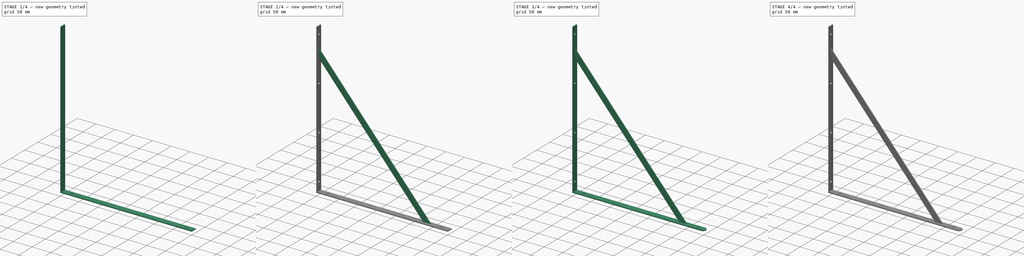
[diagram: build sequence overview — one tinted view per stage of 4, left to right]
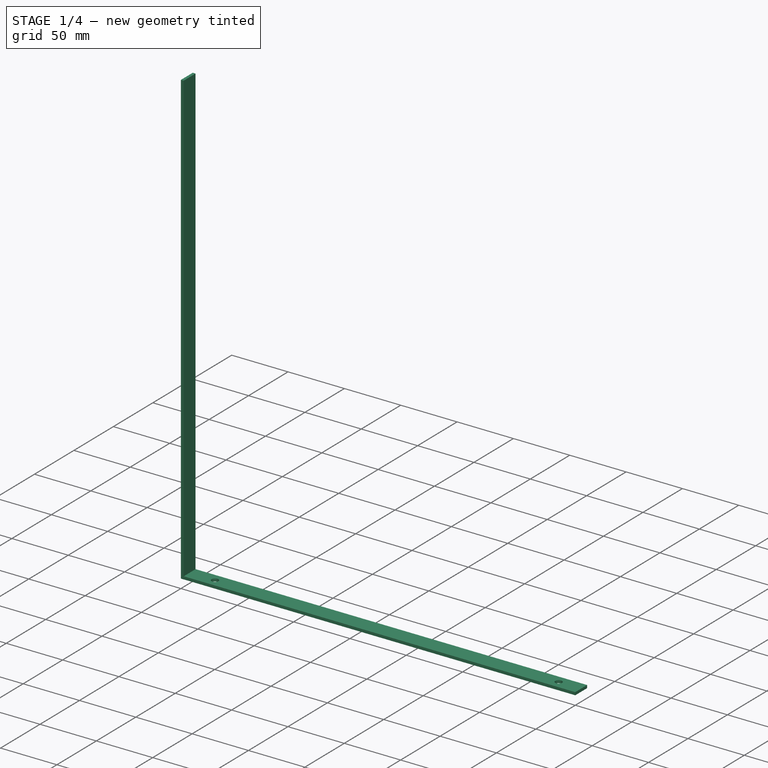
[diagram: stage 1 of 4 — iso view after this stage's code; geometry added in this stage tinted green]
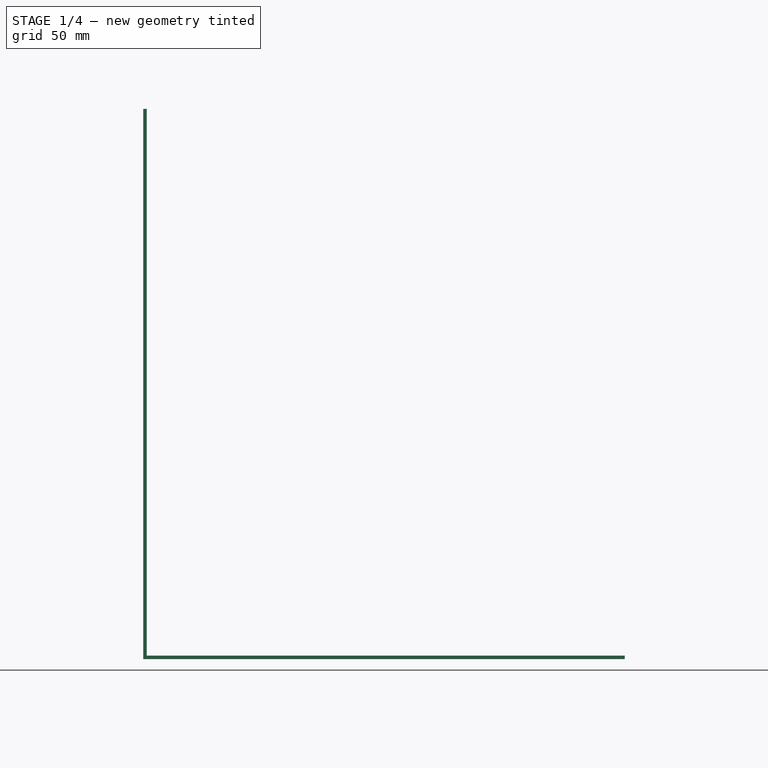
[diagram: stage 1 of 4 — front view after this stage's code; geometry added in this stage tinted green]
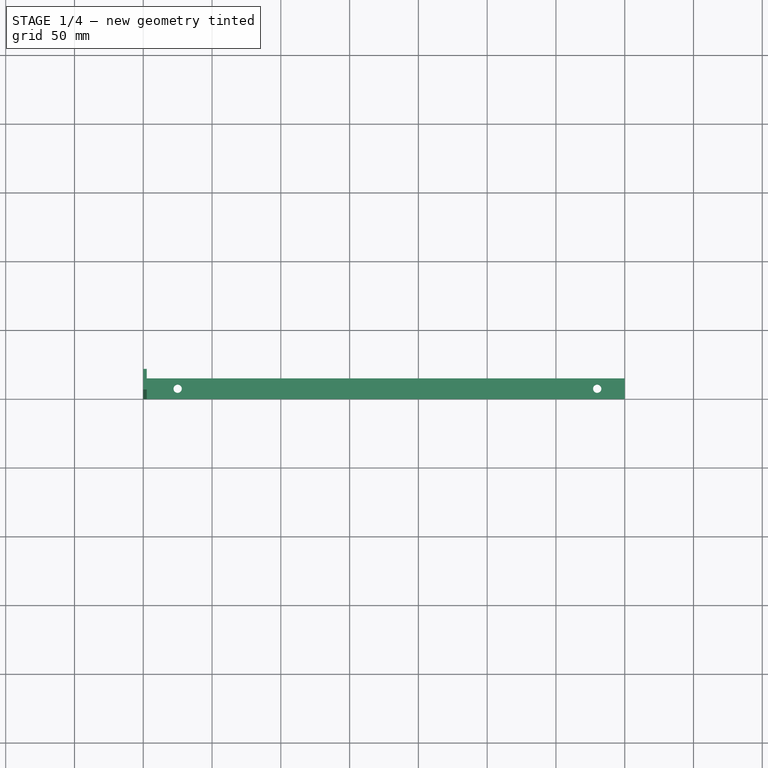
[diagram: stage 1 of 4 — top view after this stage's code; geometry added in this stage tinted green]
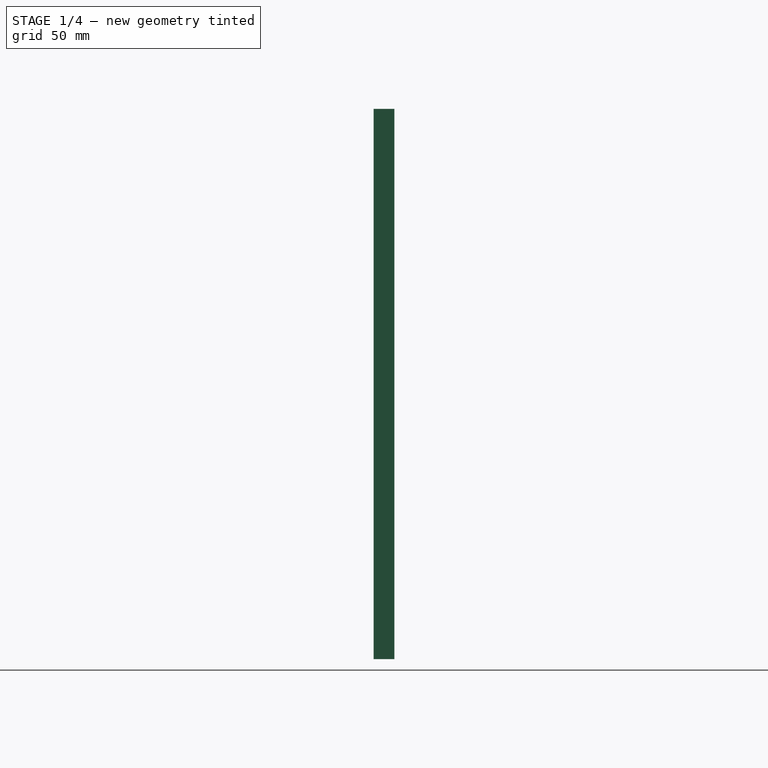
[diagram: stage 1 of 4 — right view after this stage's code; geometry added in this stage tinted green]
FCSTD DOCUMENT  (FreeCAD 0.19R)
Label: CANTONEIRA
License: All rights reserved
LicenseURL: http://en.wikipedia.org/wiki/All_rights_reserved
objects: Sketcher::SketchObject×4, Part::Extrusion×4, Part::Fillet×4, Part::Cut×2, Part::MultiFuse×1
note: 15 computed .brp shape members not serialized (recipe doc carries the construction recipe); baked Part::Feature solids carry a one-line shape summary decoded from their .brp

FEATURE [Sketcher::SketchObject] Sketch
  Placement = pos=(0,0,0) rot=(-1,0,0;4.71239rad)
  sketch-geometry (6):
    g0: LineSegment StartX=0 StartY=0 StartZ=0 EndX=350 EndY=0 EndZ=0
    g1: LineSegment StartX=350 StartY=0 StartZ=0 EndX=350 EndY=2.5 EndZ=0
    g2: LineSegment StartX=0 StartY=400 StartZ=0 EndX=2.5 EndY=400 EndZ=0
    g3: LineSegment StartX=2.5 StartY=400 StartZ=0 EndX=2.5 EndY=2.5 EndZ=0
    g4: LineSegment StartX=0 StartY=400 StartZ=0 EndX=0 EndY=0 EndZ=0
    g5: LineSegment StartX=2.5 StartY=2.5 StartZ=0 EndX=350 EndY=2.5 EndZ=0
  constraints (17):
    c: Coincident(g0,g1)
    c: Coincident(g2,g3)
    c: Horizontal(g0)
    c: Horizontal(g2)
    c: Vertical(g1)
    c: Vertical(g3)
    c: Coincident(g0,g-1)
    c: Horizontal(g5)
    c: Vertical(g4)
    c: Coincident(g2,g4)
    c: Coincident(g5,g1)
    c: Equal(g2,g1)
    c: DistanceY(g1,g1) = 2.5
    c: DistanceX(g0,g0) = 350
    c: DistanceY(g4,g4) = 400
    c: Coincident(g3,g5)
    c: Coincident(g4,g0)
FEATURE [Part::Extrusion] Extrude
  Base = -> Sketch
  Dir = (0,1,0)
  DirMode = 0
  FaceMakerClass = Part::FaceMakerBullseye
  LengthFwd = 15
  LengthRev = 0
  Solid = true
  Symmetric = false
FEATURE [Sketcher::SketchObject] Sketch001
  ExternalGeometry = -> [Extrude]
  MapMode = 5
  Placement = pos=(0,0,2.5) rot=(0,0,1;0rad)
  Support = -> [Extrude]
  sketch-geometry (5):
    g0: LineSegment [constr] StartX=350 StartY=7.5 StartZ=0 EndX=330 EndY=7.5 EndZ=0
    g1: LineSegment [constr] StartX=330 StartY=7.5 StartZ=0 EndX=25 EndY=7.5 EndZ=0
    g2: LineSegment [constr] StartX=25 StartY=7.5 StartZ=0 EndX=0 EndY=7.5 EndZ=0
    g3: Circle CenterX=25 CenterY=7.5 CenterZ=0 NormalX=0 NormalY=0 NormalZ=1 AngleXU=0 Radius=3
    g4: Circle CenterX=330 CenterY=7.5 CenterZ=0 NormalX=0 NormalY=0 NormalZ=1 AngleXU=0 Radius=3
  constraints (9):
    c: PointOnObject(g0,g-4)
    c: Horizontal(g0)
    c: DistanceX(g2,g2) = 25
    c: DistanceX(g0,g0) = 20
    c: Coincident(g3,g1)
    c: Coincident(g4,g0)
    c: Equal(g4,g3)
    c: Diameter(g3) = 6
    c: Coincident(g4,g1)
FEATURE [Sketcher::SketchObject] Sketch002
  ExternalGeometry = -> [Extrude]
  MapMode = 5
  Placement = pos=(0,0,0) rot=(0.57735,-0.57735,-0.57735;2.0944rad)
  Support = -> [Extrude]
  sketch-geometry (9):
    g0: LineSegment [constr] StartX=-7.5 StartY=0 StartZ=0 EndX=-7.5 EndY=25 EndZ=0
    g1: LineSegment [constr] StartX=-7.5 StartY=25 StartZ=0 EndX=-7.5 EndY=143.333 EndZ=0
    g2: LineSegment [constr] StartX=-7.5 StartY=143.333 StartZ=0 EndX=-7.5 EndY=261.667 EndZ=0
    g3: LineSegment [constr] StartX=-7.5 StartY=261.667 StartZ=0 EndX=-7.5 EndY=380 EndZ=0
    g4: LineSegment [constr] StartX=-7.5 StartY=380 StartZ=0 EndX=-7.5 EndY=400 EndZ=0
    g5: Circle CenterX=-7.5 CenterY=25 CenterZ=0 NormalX=0 NormalY=0 NormalZ=1 AngleXU=0 Radius=3
    g6: Circle CenterX=-7.5 CenterY=143.333 CenterZ=0 NormalX=0 NormalY=0 NormalZ=1 AngleXU=0 Radius=3
    g7: Circle CenterX=-7.5 CenterY=261.667 CenterZ=0 NormalX=0 NormalY=0 NormalZ=1 AngleXU=0 Radius=3
    g8: Circle CenterX=-7.5 CenterY=380 CenterZ=0 NormalX=0 NormalY=0 NormalZ=1 AngleXU=0 Radius=3
  constraints (23):
    c: PointOnObject(g0,g-3)
    c: Vertical(g0)
    c: Coincident(g0,g1)
    c: Vertical(g1)
    c: Coincident(g1,g2)
    c: Vertical(g2)
    c: Coincident(g2,g3)
    c: Vertical(g3)
    c: Coincident(g3,g4)
    c: Vertical(g4)
    c: Symmetric(g-4,g-4,g4)
    c: DistanceY(g4,g4) = 20
    c: DistanceY(g0,g0) = 25
    c: Equal(g1,g2)
    c: Equal(g2,g3)
    c: Coincident(g5,g0)
    c: Coincident(g6,g1)
    c: Coincident(g7,g2)
    c: Coincident(g8,g3)
    c: Diameter(g8) = 6
    c: Equal(g8,g7)
    c: Equal(g7,g6)
    c: Equal(g6,g5)
FEATURE [Sketcher::SketchObject] Sketch003
  ExternalGeometry = -> [Extrude]
  Placement = pos=(0,0,0) rot=(-1,0,0;4.71239rad)
  sketch-geometry (5):
    g0: LineSegment StartX=300 StartY=2.5 StartZ=0 EndX=280.131 EndY=2.5 EndZ=0
    g1: LineSegment StartX=280.131 StartY=2.5 StartZ=0 EndX=2.5 EndY=322.126 EndZ=0
    g2: LineSegment StartX=2.5 StartY=322.126 StartZ=0 EndX=2.5 EndY=345 EndZ=0
    g3: LineSegment StartX=2.5 StartY=345 StartZ=0 EndX=300 EndY=2.5 EndZ=0
    g4: LineSegment [constr] StartX=151.25 StartY=173.75 StartZ=0 EndX=139.926 EndY=163.913 EndZ=0
  constraints (15):
    c: Horizontal(g0)
    c: Coincident(g0,g1)
    c: Coincident(g1,g2)
    c: Vertical(g2)
    c: Coincident(g2,g3)
    c: Coincident(g3,g0)
    c: PointOnObject(g0,g-4)
    c: DistanceX(g0,g-4) = 50
    c: PointOnObject(g2,g-3)
    c: DistanceY(g2,g-3) = 55
    c: Parallel(g1,g3)
    c: PointOnObject(g4,g1)
    c: Symmetric(g3,g3,g4)
    c: Perpendicular(g3,g4)
    c: Distance(g4) = 15
FEATURE [Part::Extrusion] Extrude001
  Base = -> Sketch001
  Dir = (0,0,-1)
  DirMode = 0
  FaceMakerClass = Part::FaceMakerBullseye
  LengthFwd = 10
  LengthRev = 0
  Solid = true
  Symmetric = false
FEATURE [Part::Cut] Cut
  Base = -> Extrude
  Refine = true
  Tool = -> Extrude001
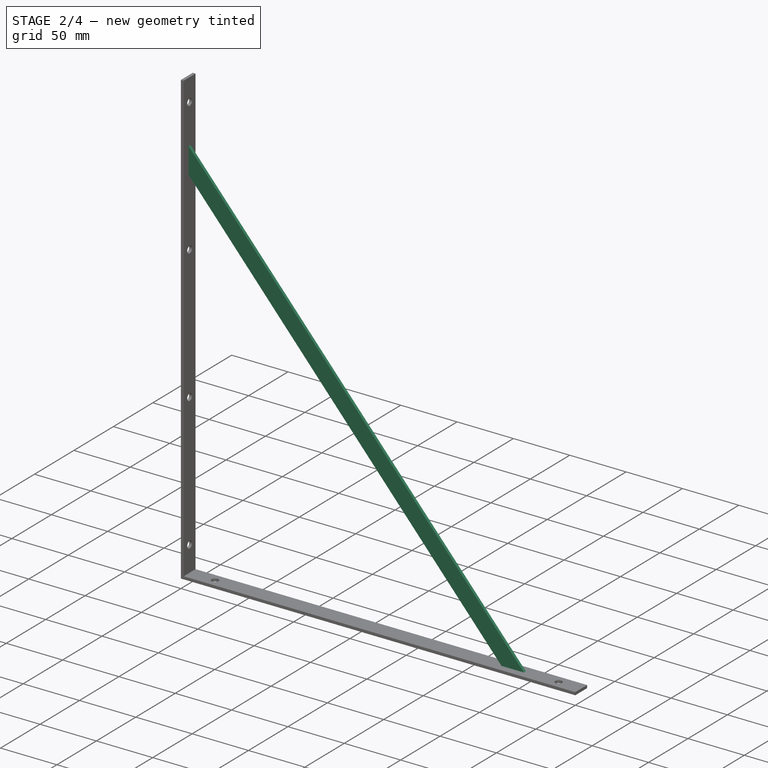
[diagram: stage 2 of 4 — iso view after this stage's code; geometry added in this stage tinted green]
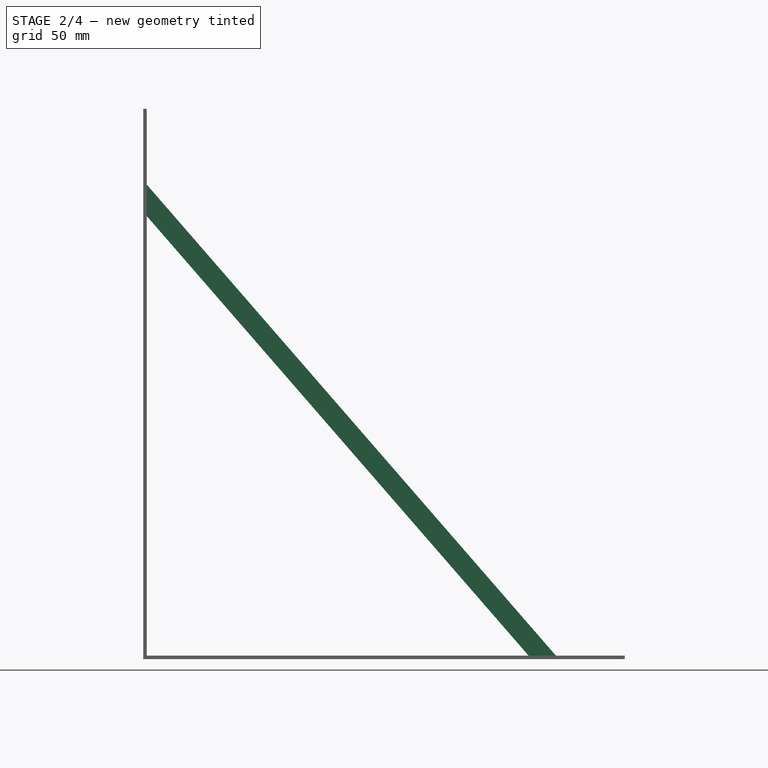
[diagram: stage 2 of 4 — front view after this stage's code; geometry added in this stage tinted green]
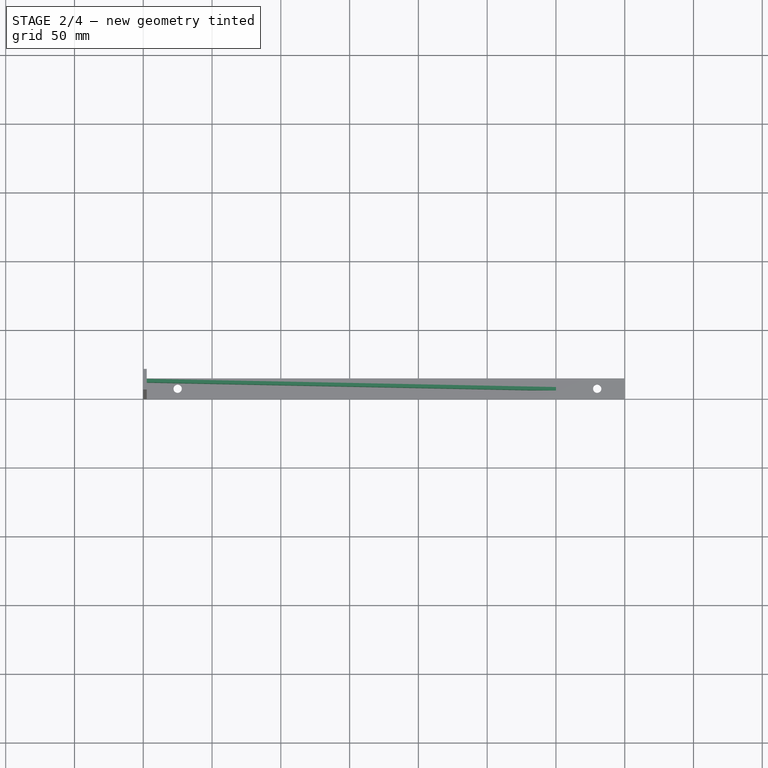
[diagram: stage 2 of 4 — top view after this stage's code; geometry added in this stage tinted green]
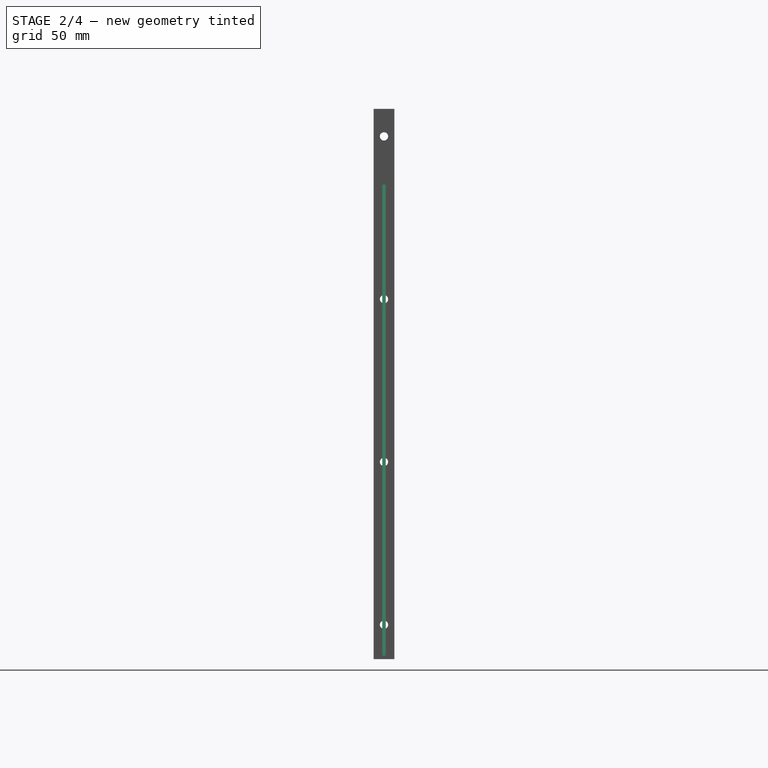
[diagram: stage 2 of 4 — right view after this stage's code; geometry added in this stage tinted green]
FEATURE [Part::Extrusion] Extrude002
  Base = -> Sketch002
  Dir = (1,0,0)
  DirMode = 0
  FaceMakerClass = Part::FaceMakerBullseye
  LengthFwd = 10
  LengthRev = 0
  Solid = true
  Symmetric = false
FEATURE [Part::Extrusion] Extrude003
  Base = -> Sketch003
  Dir = (0,1,0)
  DirMode = 0
  FaceMakerClass = Part::FaceMakerBullseye
  LengthFwd = 2.5
  LengthRev = 0
  Placement = pos=(0,6.25,0) rot=(0,0,1;0rad)
  Solid = true
  Symmetric = false
FEATURE [Part::Cut] Cut001
  Base = -> Cut
  Refine = true
  Tool = -> Extrude002
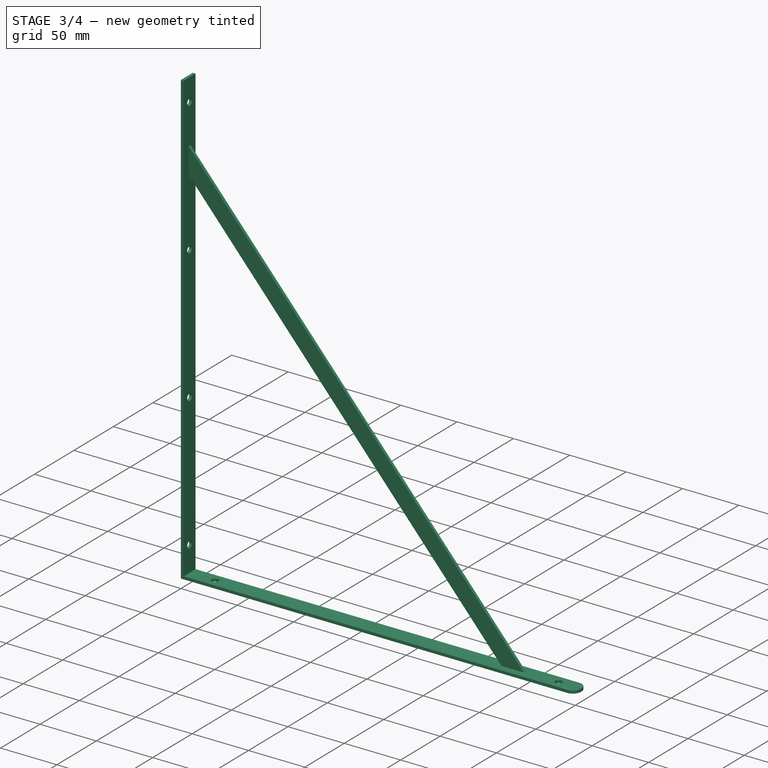
[diagram: stage 3 of 4 — iso view after this stage's code; geometry added in this stage tinted green]
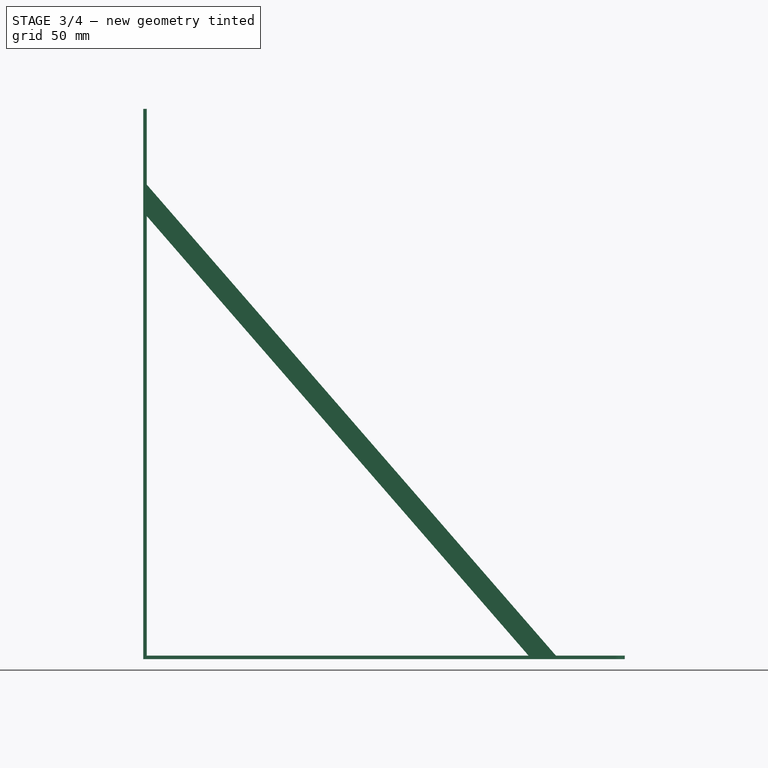
[diagram: stage 3 of 4 — front view after this stage's code; geometry added in this stage tinted green]
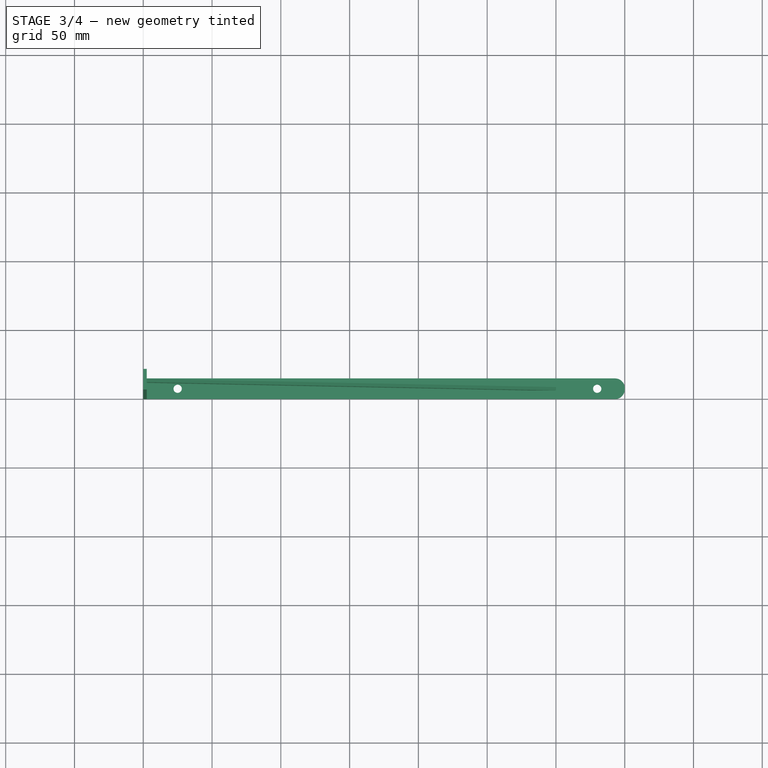
[diagram: stage 3 of 4 — top view after this stage's code; geometry added in this stage tinted green]
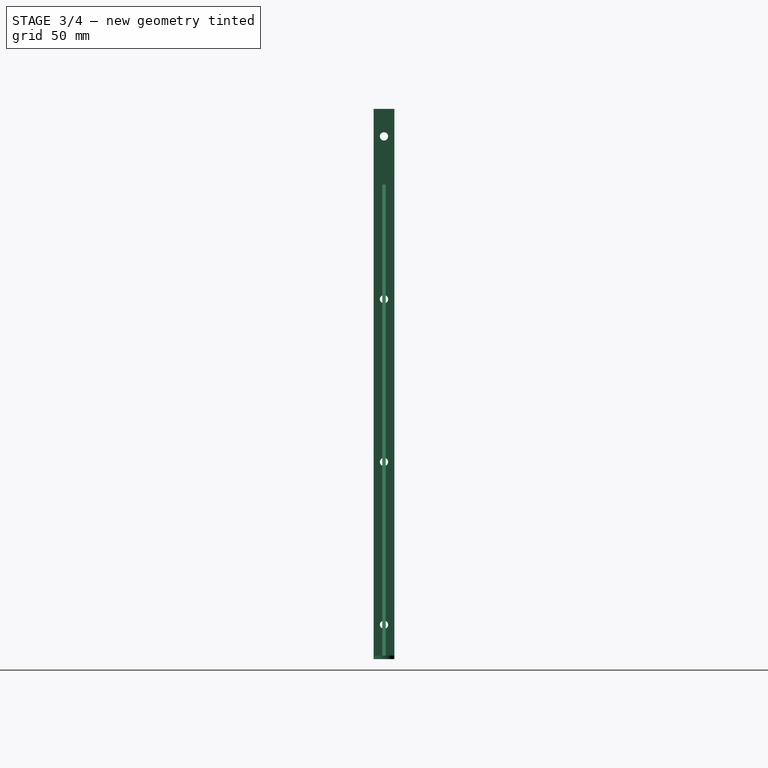
[diagram: stage 3 of 4 — right view after this stage's code; geometry added in this stage tinted green]
FEATURE [Part::MultiFuse] Fusion
  Refine = true
  Shapes = -> [Extrude003,Cut001]
FEATURE [Part::Fillet] Fillet
  Base = -> Fusion
  Edges = 2 edges r=7: [Edge13,Edge17]
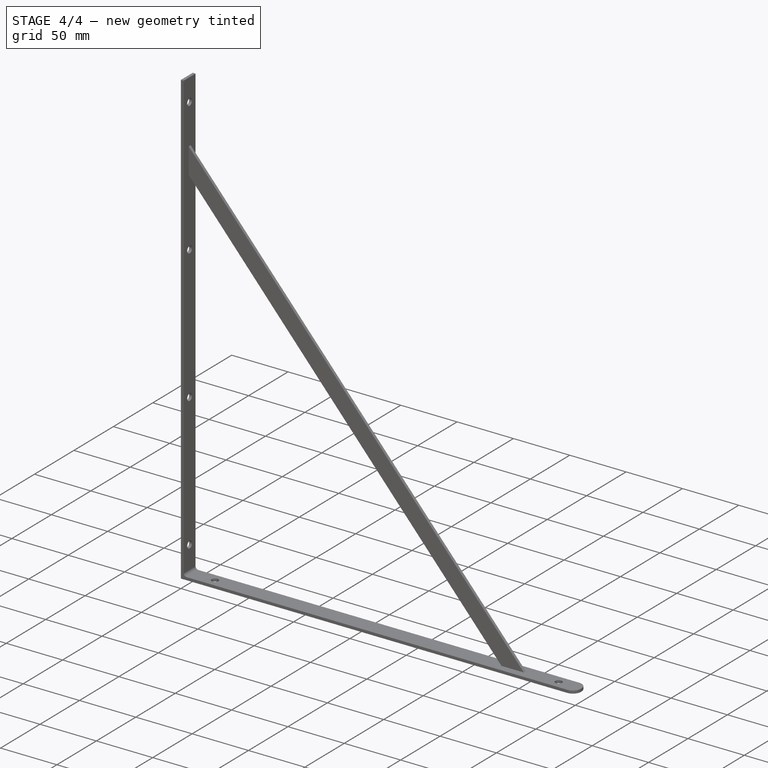
[diagram: stage 4 of 4 — iso view after this stage's code; geometry added in this stage tinted green]
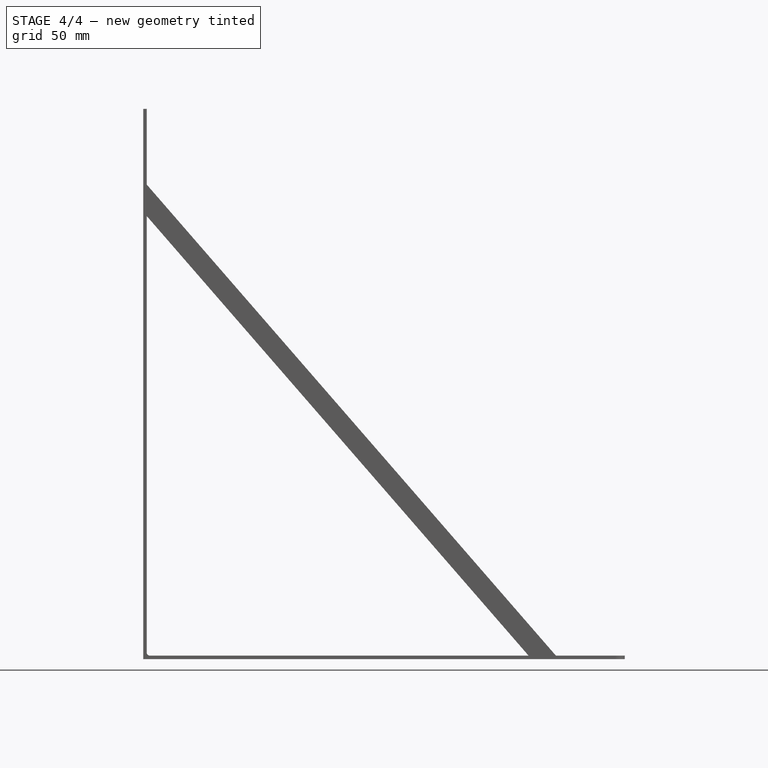
[diagram: stage 4 of 4 — front view after this stage's code; geometry added in this stage tinted green]
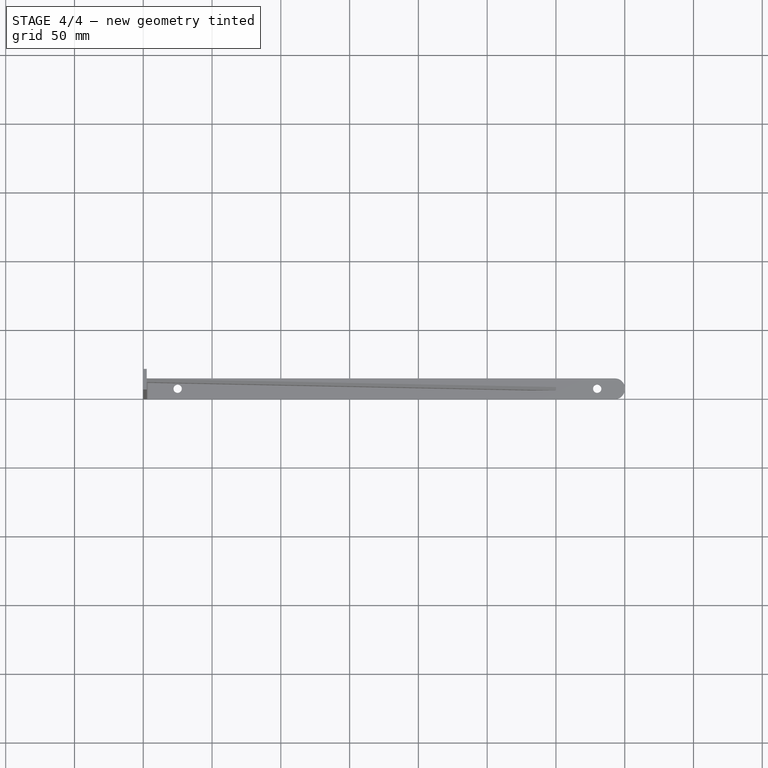
[diagram: stage 4 of 4 — top view after this stage's code; geometry added in this stage tinted green]
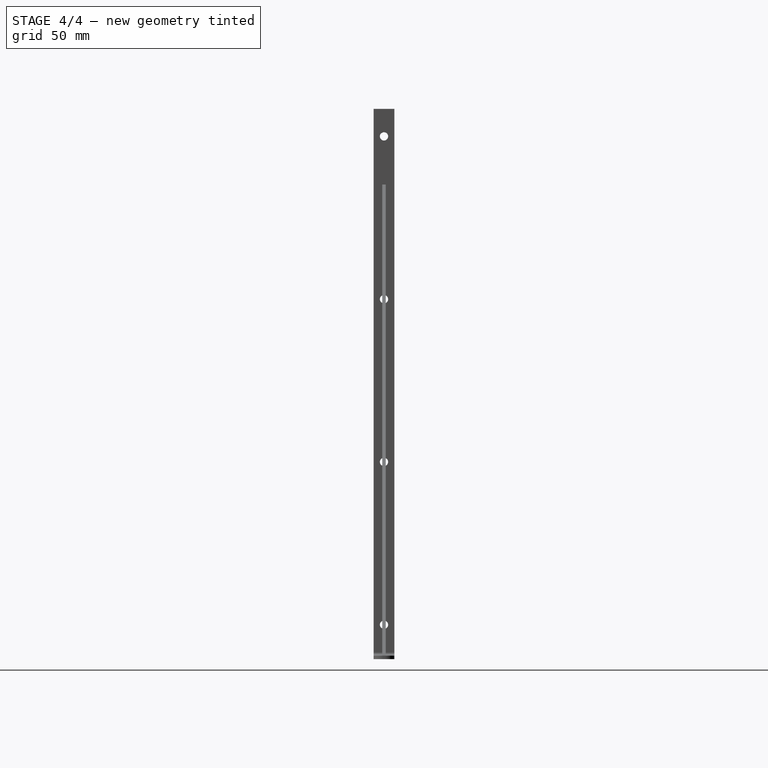
[diagram: stage 4 of 4 — right view after this stage's code; geometry added in this stage tinted green]
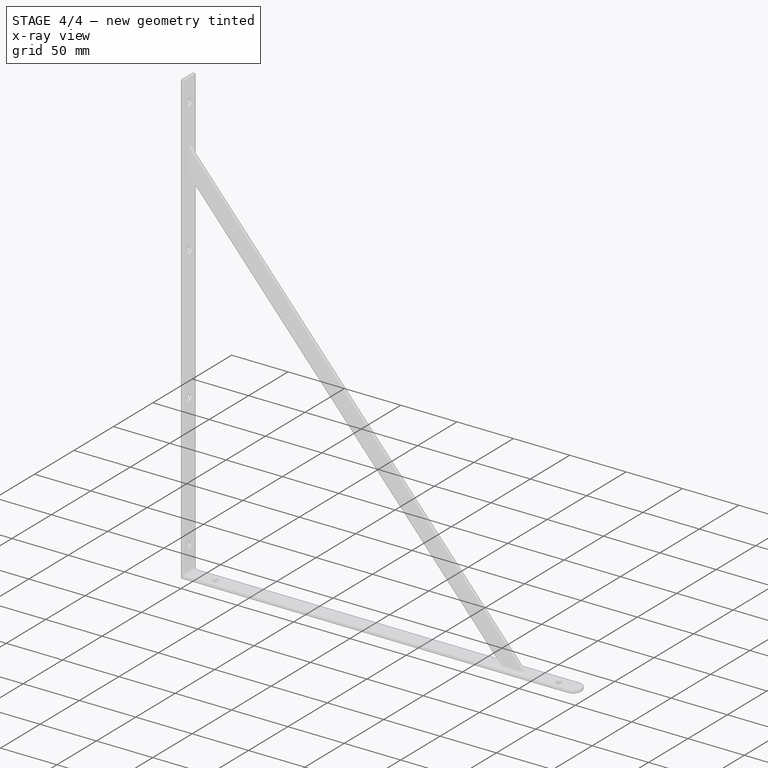
[diagram: stage 4 of 4 — x-ray composite at the iso view; earlier geometry ghosted, this stage's added geometry solid]
FEATURE [Part::Fillet] Fillet001
  Base = -> Fillet
  Edges = 2 edges r=7: [Edge3,Edge32]
FEATURE [Part::Fillet] Fillet002
  Base = -> Fillet
  Edges = 1 edges r=2.5: [Edge22]
FEATURE [Part::Fillet] Fillet003
  Base = -> Fillet002
  Edges = 1 edges r=5: [Edge34]
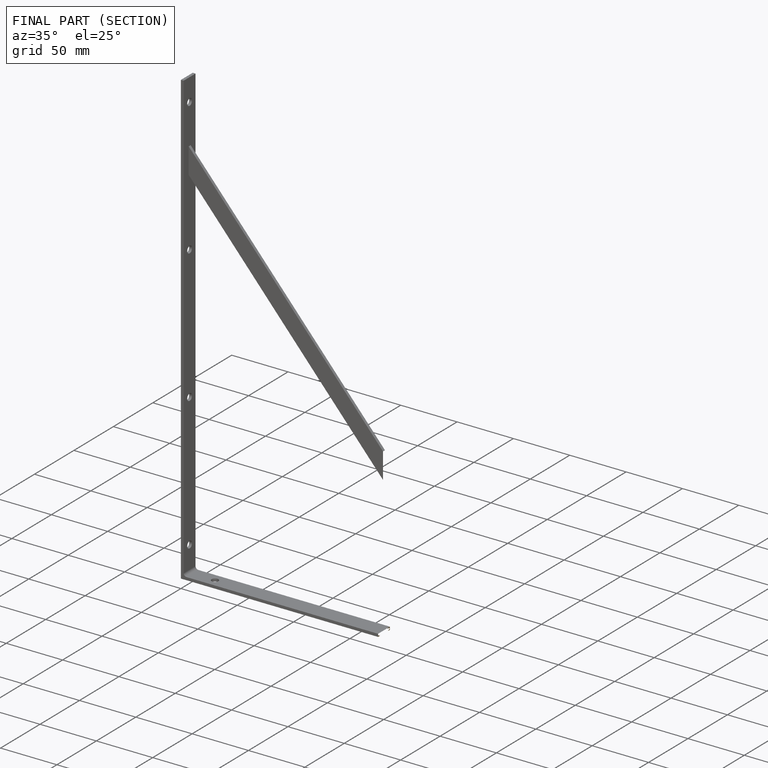
[diagram: finished part — half-section view (interior)]
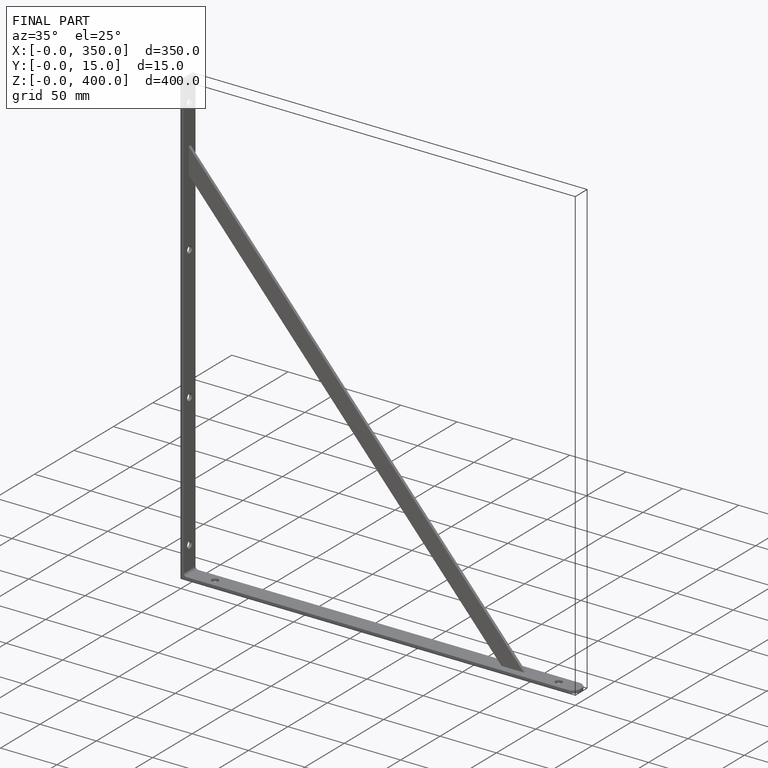
[diagram: finished part — iso view with bounding-box wireframe]
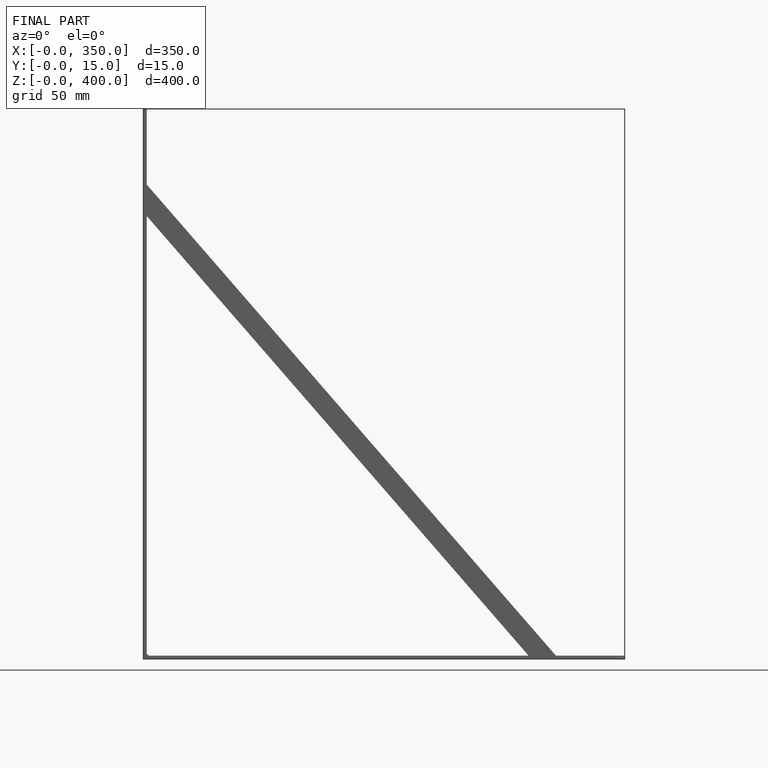
[diagram: finished part — front view with bounding-box wireframe]
